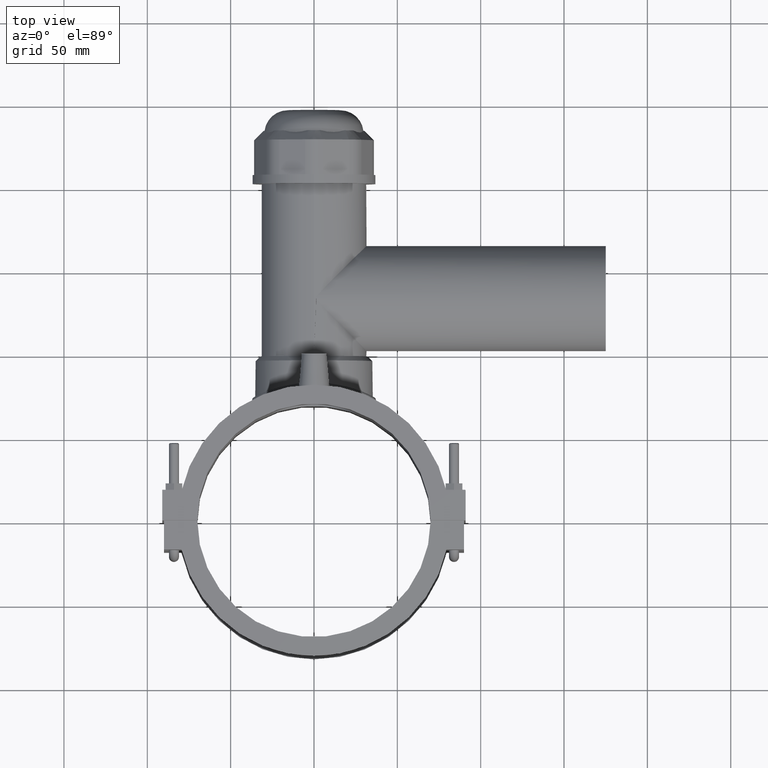
[diagram: clean part render]
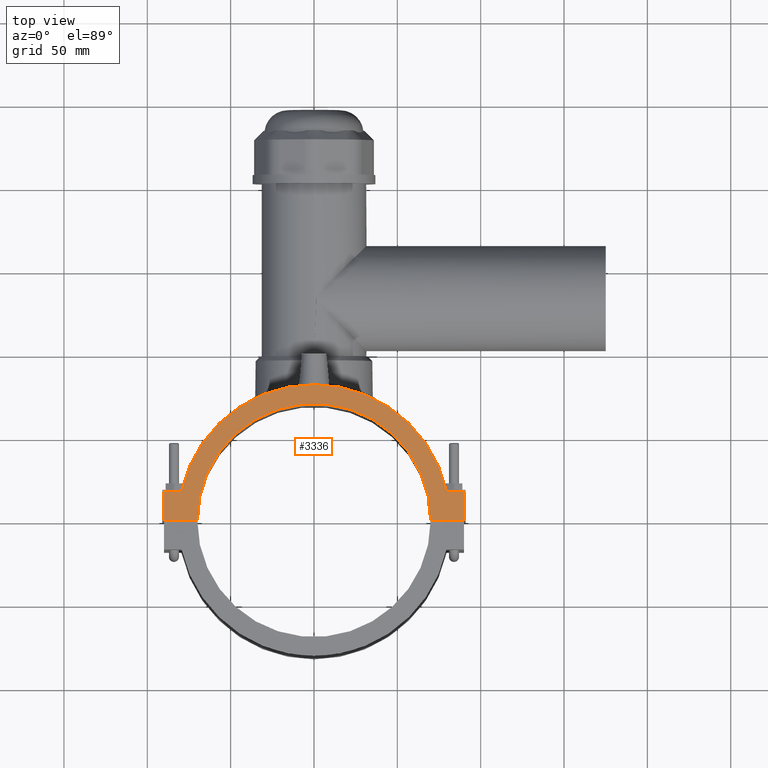
[diagram: same view with one face highlighted and labeled with its STEP entity id]
A machine part, top view. The second image highlights one B-rep face of the part: STEP entity #3336.
In plain terms, the highlighted planar face has unit normal (0, 0, 1).
Its self-contained STEP definition (entity closure, byte-faithful):
#135=LINE('',#5650,#422);
#176=LINE('',#5921,#463);
#219=LINE('',#6124,#506);
#221=LINE('',#6127,#508);
#276=LINE('',#6457,#563);
#321=LINE('',#6741,#608);
#422=VECTOR('',#3987,10.5074920762969);
#463=VECTOR('',#4062,17.45);
#506=VECTOR('',#4141,17.45);
#508=VECTOR('',#4145,10.5074920762969);
#563=VECTOR('',#4354,20.0000178571452);
#608=VECTOR('',#4511,20.0000178571451);
#964=FACE_OUTER_BOUND('',#1212,.T.);
#1212=EDGE_LOOP('',(#3020,#3021,#3022,#3023,#3024,#3025,#3026,#3027));
#1264=CIRCLE('',#3454,81.396);
#1326=CIRCLE('',#3636,70.);
#1439=VERTEX_POINT('',#5619);
#1440=VERTEX_POINT('',#5620);
#1450=VERTEX_POINT('',#5648);
#1500=VERTEX_POINT('',#5919);
#1536=VERTEX_POINT('',#6121);
#1537=VERTEX_POINT('',#6123);
#1593=VERTEX_POINT('',#6455);
#1634=VERTEX_POINT('',#6740);
#1793=EDGE_CURVE('',#1439,#1440,#1264,.T.);
#1808=EDGE_CURVE('',#1440,#1450,#135,.T.);
#1870=EDGE_CURVE('',#1450,#1500,#176,.T.);
#1922=EDGE_CURVE('',#1537,#1536,#219,.T.);
#1924=EDGE_CURVE('',#1536,#1439,#221,.T.);
#2014=EDGE_CURVE('',#1500,#1593,#276,.T.);
#2086=EDGE_CURVE('',#1634,#1537,#321,.T.);
#2092=EDGE_CURVE('',#1593,#1634,#1326,.T.);
#3020=ORIENTED_EDGE('',*,*,#2086,.T.);
#3021=ORIENTED_EDGE('',*,*,#1922,.T.);
#3022=ORIENTED_EDGE('',*,*,#1924,.T.);
#3023=ORIENTED_EDGE('',*,*,#1793,.T.);
#3024=ORIENTED_EDGE('',*,*,#1808,.T.);
#3025=ORIENTED_EDGE('',*,*,#1870,.T.);
#3026=ORIENTED_EDGE('',*,*,#2014,.T.);
#3027=ORIENTED_EDGE('',*,*,#2092,.T.);
#3145=PLANE('',#3639);
#3336=ADVANCED_FACE('',(#964),#3145,.T.);
#3454=AXIS2_PLACEMENT_3D('',#5621,#3958,#3959);
#3636=AXIS2_PLACEMENT_3D('',#6752,#4523,#4524);
#3639=AXIS2_PLACEMENT_3D('',#6755,#4529,#4530);
#3958=DIRECTION('center_axis',(0.,0.,1.));
#3959=DIRECTION('ref_axis',(0.976614427290077,0.21499828001376,0.));
#3987=DIRECTION('',(-1.,0.,0.));
#4062=DIRECTION('',(0.,-1.,0.));
#4141=DIRECTION('',(0.,1.,0.));
#4145=DIRECTION('',(-1.,0.,0.));
#4354=DIRECTION('',(1.,-1.92747052886312E-19,0.));
#4511=DIRECTION('',(1.,-1.92747052886312E-19,0.));
#4523=DIRECTION('center_axis',(0.,0.,-1.));
#4524=DIRECTION('ref_axis',(-1.,0.,0.));
#4529=DIRECTION('center_axis',(0.,0.,1.));
#4530=DIRECTION('ref_axis',(1.,0.,0.));
#5619=CARTESIAN_POINT('',(79.4925079237031,17.5,59.));
#5620=CARTESIAN_POINT('',(-79.4925079237031,17.5,59.));
#5621=CARTESIAN_POINT('Origin',(0.,0.,59.));
#5648=CARTESIAN_POINT('',(-90.,17.5,59.));
#5650=CARTESIAN_POINT('',(-77.8574980332659,17.5,59.));
#5919=CARTESIAN_POINT('',(-90.,0.0500000000000078,59.));
#5921=CARTESIAN_POINT('',(-90.,17.5,59.));
#6121=CARTESIAN_POINT('',(90.,17.5,59.));
#6123=CARTESIAN_POINT('',(90.,0.0500000000000078,59.));
#6124=CARTESIAN_POINT('',(90.,-17.5,59.));
#6127=CARTESIAN_POINT('',(90.,17.5,59.));
#6455=CARTESIAN_POINT('',(-69.9999821428549,0.0500000000000078,59.));
#6457=CARTESIAN_POINT('',(2.53380711334623,0.0500000000000078,59.));
#6740=CARTESIAN_POINT('',(69.9999821428549,0.0500000000000078,59.));
#6741=CARTESIAN_POINT('',(2.53380711334623,0.0500000000000078,59.));
#6752=CARTESIAN_POINT('Origin',(0.,0.,59.));
#6755=CARTESIAN_POINT('Origin',(-84.9323857733075,3.14881777612425E-16,
59.));